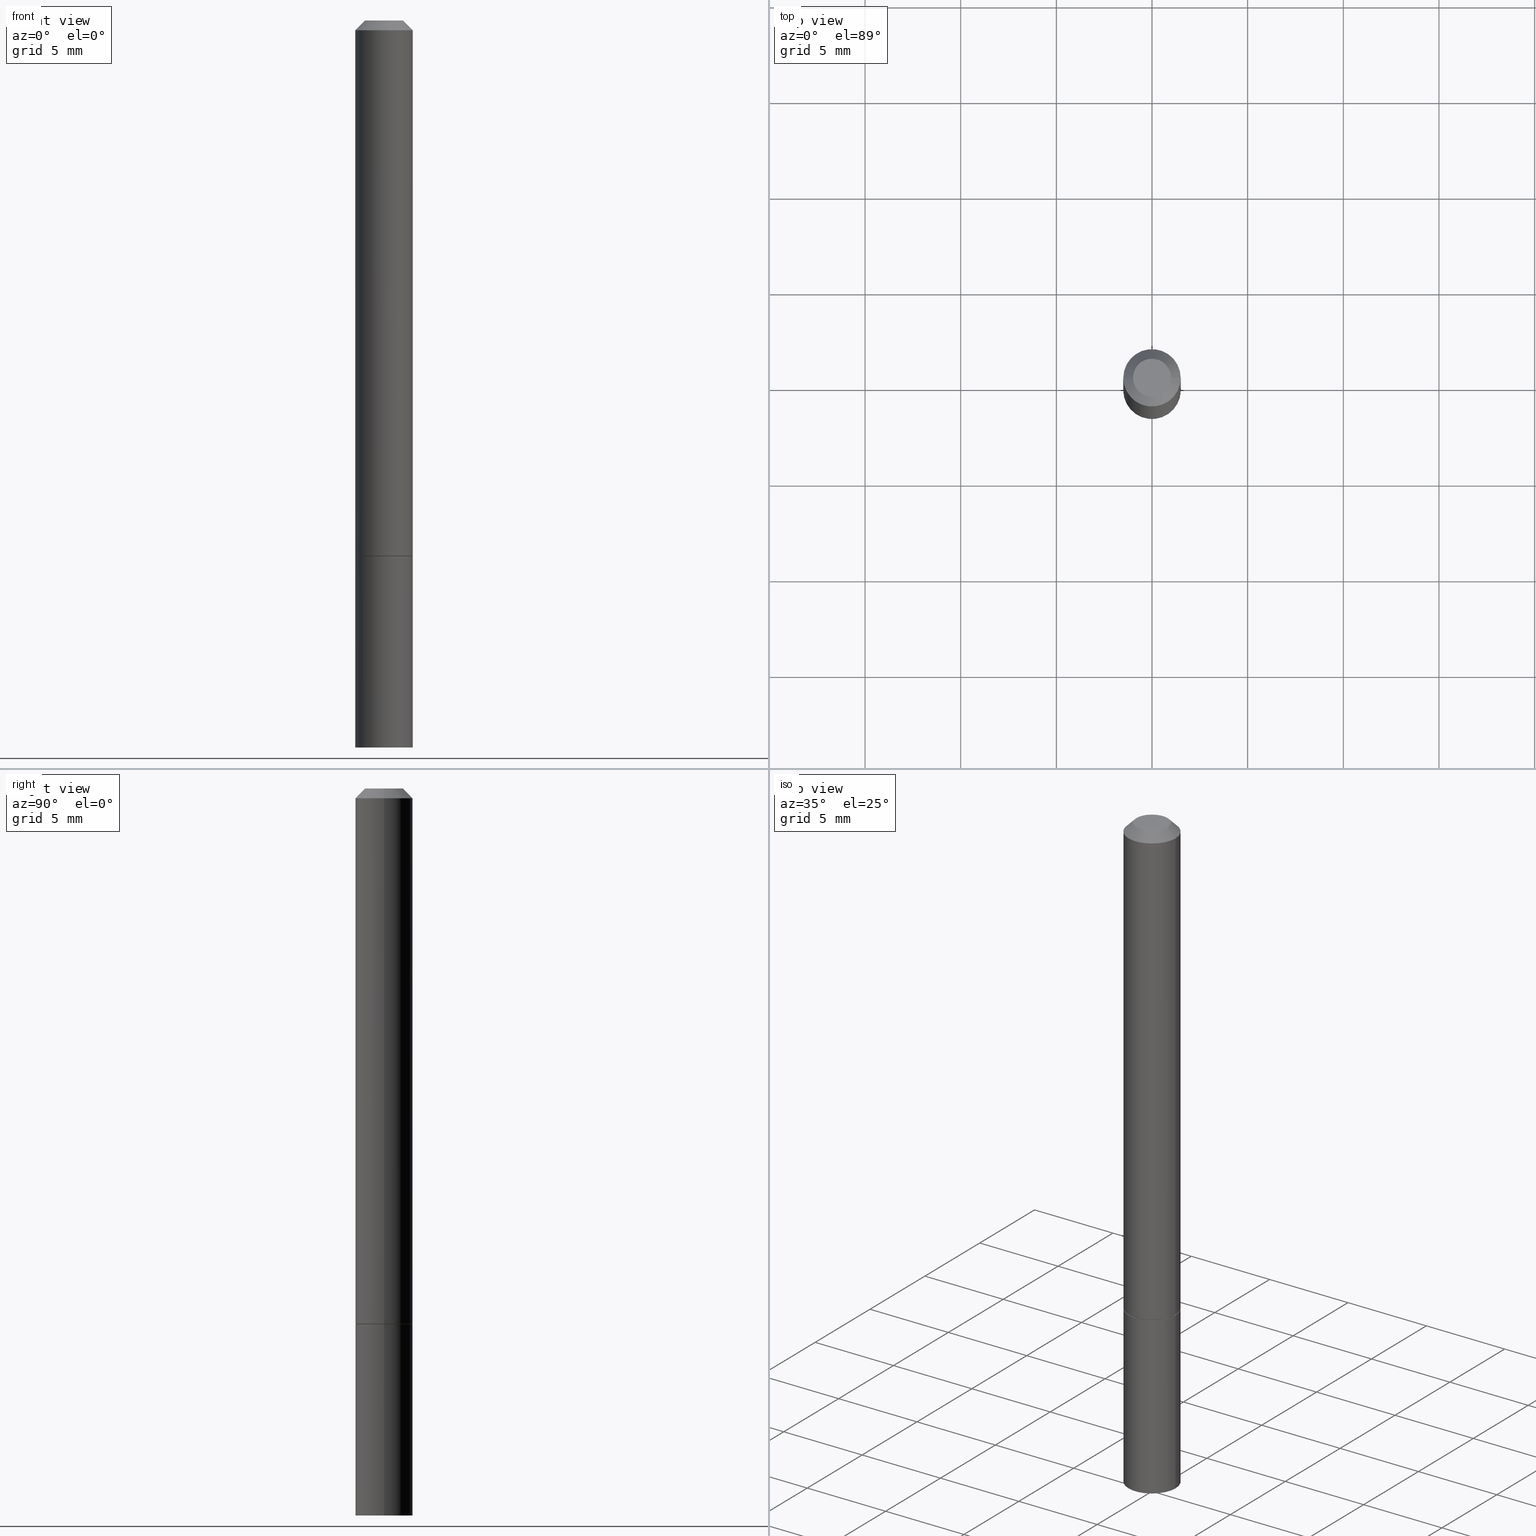
[diagram: canonical four-view strip — front | top / right | iso, engineering-drawing reading convention]
A machine part, canonical four-view strip (front | top / right | iso — engineering-drawing reading convention). The complete STEP part file that produces these views, byte-faithful:
ISO-10303-21;
HEADER;
FILE_DESCRIPTION (( 'STEP AP203' ),
    '1' );
FILE_NAME ('83071.STEP',
    '2024-02-29T23:14:14',
    ( '' ),
    ( '' ),
    'SwSTEP 2.0',
    'SolidWorks 2023',
    '' );
FILE_SCHEMA (( 'CONFIG_CONTROL_DESIGN' ));
ENDSEC;

DATA;
#1 = CC_DESIGN_APPROVAL ( #141, ( #272 ) ) ;
#2 = DATE_AND_TIME ( #310, #342 ) ;
#3 = CLOSED_SHELL ( 'NONE', ( #31, #108, #82, #218 ) ) ;
#4 = DIMENSIONAL_EXPONENTS ( 1.000000000000000000, 0.000000000000000000, 0.000000000000000000, 0.000000000000000000, 0.000000000000000000, 0.000000000000000000, 0.000000000000000000 ) ;
#5 = EDGE_CURVE ( 'NONE', #43, #33, #353, .T. ) ;
#6 = LOCAL_TIME ( 18, 14, 14.00000000000000000, #74 ) ;
#7 = LINE ( 'NONE', #247, #289 ) ;
#8 = ORIENTED_EDGE ( 'NONE', *, *, #203, .T. ) ;
#9 = CARTESIAN_POINT ( 'NONE',  ( 0.05904999999999988036, -4.749420335452712790E-16, -0.02000000000000006287 ) ) ;
#10 = ORIENTED_EDGE ( 'NONE', *, *, #313, .F. ) ;
#11 = PRODUCT_DEFINITION ( 'UNKNOWN', '', #272, #186 ) ;
#12 =( GEOMETRIC_REPRESENTATION_CONTEXT ( 3 ) GLOBAL_UNCERTAINTY_ASSIGNED_CONTEXT ( ( #139 ) ) GLOBAL_UNIT_ASSIGNED_CONTEXT ( ( #140, #206, #76 ) ) REPRESENTATION_CONTEXT ( 'NONE', 'WORKASPACE' ) );
#13 = VERTEX_POINT ( 'NONE', #19 ) ;
#14 = APPROVAL_DATE_TIME ( #29, #360 ) ;
#15 = EDGE_LOOP ( 'NONE', ( #194, #325, #257, #301 ) ) ;
#16 = DIRECTION ( 'NONE',  ( -2.445468806185136597E-29, 3.491481338843145583E-15, 1.000000000000000000 ) ) ;
#17 = ORIENTED_EDGE ( 'NONE', *, *, #111, .F. ) ;
#18 = AXIS2_PLACEMENT_3D ( 'NONE', #59, #211, #121 ) ;
#19 = CARTESIAN_POINT ( 'NONE',  ( 0.05805000000000001131, -4.254370011380371436E-15, -1.102400000000000047 ) ) ;
#20 = ADVANCED_FACE ( 'NONE', ( #284 ), #359, .F. ) ;
#21 = DIRECTION ( 'NONE',  ( 1.000000000000000000, -6.982962677686266711E-15, 4.876176775795935793E-29 ) ) ;
#22 = ORIENTED_EDGE ( 'NONE', *, *, #295, .T. ) ;
#23 = AXIS2_PLACEMENT_3D ( 'NONE', #189, #160, #63 ) ;
#24 = PERSON_AND_ORGANIZATION ( #107, #101 ) ;
#25 = PRODUCT_DEFINITION_SHAPE ( 'NONE', 'NONE',  #11 ) ;
#26 = CARTESIAN_POINT ( 'NONE',  ( -0.05805000000000001131, -3.431240515483723221E-15, -1.102400000000000047 ) ) ;
#27 = CARTESIAN_POINT ( 'NONE',  ( -0.05904999999999988036, 3.425143193405100442E-16, -0.02000000000000006287 ) ) ;
#28 = VECTOR ( 'NONE', #277, 39.37007874015748143 ) ;
#29 = DATE_AND_TIME ( #114, #269 ) ;
#30 = EDGE_CURVE ( 'NONE', #33, #43, #150, .T. ) ;
#31 = ADVANCED_FACE ( 'NONE', ( #336 ), #314, .T. ) ;
#32 = AXIS2_PLACEMENT_3D ( 'NONE', #265, #291, #362 ) ;
#33 = VERTEX_POINT ( 'NONE', #153 ) ;
#34 = PERSON_AND_ORGANIZATION ( #107, #101 ) ;
#35 = CIRCLE ( 'NONE', #126, 0.05905000000000001914 ) ;
#36 = VERTEX_POINT ( 'NONE', #83 ) ;
#37 = DIRECTION ( 'NONE',  ( -1.000000000000000000, 6.982962677686266711E-15, 0.000000000000000000 ) ) ;
#38 = DIRECTION ( 'NONE',  ( -2.445468806185136597E-29, 3.491481338843145583E-15, 1.000000000000000000 ) ) ;
#39 = EDGE_LOOP ( 'NONE', ( #164, #128, #10, #306 ) ) ;
#40 = VECTOR ( 'NONE', #317, 39.37007874015748143 ) ;
#41 = APPROVAL_PERSON_ORGANIZATION ( #279, #141, #122 ) ;
#42 = DIRECTION ( 'NONE',  ( -2.445468806185136597E-29, 3.491481338843145583E-15, 1.000000000000000000 ) ) ;
#43 = VERTEX_POINT ( 'NONE', #53 ) ;
#44 = APPROVAL_ROLE ( '' ) ;
#45 = ORIENTED_EDGE ( 'NONE', *, *, #356, .T. ) ;
#46 = DIRECTION ( 'NONE',  ( 1.000000000000000000, -6.982962677686265922E-15, 4.873707401586872212E-29 ) ) ;
#47 = AXIS2_PLACEMENT_3D ( 'NONE', #49, #285, #286 ) ;
#48 = CARTESIAN_POINT ( 'NONE',  ( 0.000000000000000000, 0.000000000000000000, 0.000000000000000000 ) ) ;
#49 = CARTESIAN_POINT ( 'NONE',  ( 0.000000000000000000, 0.000000000000000000, 0.000000000000000000 ) ) ;
#50 = CARTESIAN_POINT ( 'NONE',  ( 0.000000000000000000, 0.000000000000000000, 0.000000000000000000 ) ) ;
#51 = CC_DESIGN_PERSON_AND_ORGANIZATION_ASSIGNMENT ( #171, #230, ( #272 ) ) ;
#52 = AXIS2_PLACEMENT_3D ( 'NONE', #302, #96, #37 ) ;
#53 = CARTESIAN_POINT ( 'NONE',  ( 0.03904999999999992505, -3.714222401791245450E-16, -3.414809992080104074E-17 ) ) ;
#54 = CIRCLE ( 'NONE', #175, 0.05905000000000001914 ) ;
#55 = ADVANCED_FACE ( 'NONE', ( #91 ), #366, .T. ) ;
#56 = PERSON_AND_ORGANIZATION_ROLE ( 'design_owner' ) ;
#57 = CC_DESIGN_PERSON_AND_ORGANIZATION_ASSIGNMENT ( #65, #216, ( #179 ) ) ;
#58 = CIRCLE ( 'NONE', #134, 0.05904999999999988036 ) ;
#59 = CARTESIAN_POINT ( 'NONE',  ( 2.695884811938494470E-29, -3.849009027940684107E-15, -1.102400000000000047 ) ) ;
#60 = FACE_OUTER_BOUND ( 'NONE', #149, .T. ) ;
#61 = EDGE_CURVE ( 'NONE', #288, #169, #154, .T. ) ;
#62 = PERSON_AND_ORGANIZATION ( #107, #101 ) ;
#63 = DIRECTION ( 'NONE',  ( 1.000000000000000000, -6.982962677686266711E-15, 4.876176775795935232E-29 ) ) ;
#64 = VERTEX_POINT ( 'NONE', #364 ) ;
#65 = PERSON_AND_ORGANIZATION ( #107, #101 ) ;
#66 = CARTESIAN_POINT ( 'NONE',  ( 3.658665880933582389E-29, -5.223605231043229660E-15, -1.496099999999999985 ) ) ;
#67 = ORIENTED_EDGE ( 'NONE', *, *, #348, .F. ) ;
#68 = DIRECTION ( 'NONE',  ( 1.000000000000000000, -6.982962677686270655E-15, 0.000000000000000000 ) ) ;
#69 = CARTESIAN_POINT ( 'NONE',  ( -0.05905000000000001914, -4.116731644025616996E-15, -1.496099999999999985 ) ) ;
#70 = ORIENTED_EDGE ( 'NONE', *, *, #234, .T. ) ;
#71 = DIRECTION ( 'NONE',  ( 1.000000000000000000, -6.982962677686266711E-15, 0.000000000000000000 ) ) ;
#72 = ORIENTED_EDGE ( 'NONE', *, *, #163, .T. ) ;
#73 = COORDINATED_UNIVERSAL_TIME_OFFSET ( 5, 0, .BEHIND. ) ;
#74 = COORDINATED_UNIVERSAL_TIME_OFFSET ( 5, 0, .BEHIND. ) ;
#75 = MANIFOLD_SOLID_BREP ( 'Body-Move/Copy2[2]', #205 ) ;
#76 =( NAMED_UNIT ( * ) SI_UNIT ( $, .STERADIAN. ) SOLID_ANGLE_UNIT ( ) );
#77 = CARTESIAN_POINT ( 'NONE',  ( 2.695884811938494470E-29, -3.849009027940684107E-15, -1.102400000000000047 ) ) ;
#78 = DIRECTION ( 'NONE',  ( -2.445468806185136597E-29, 3.491481338843145583E-15, 1.000000000000000000 ) ) ;
#79 = APPLICATION_CONTEXT ( 'configuration controlled 3d designs of mechanical parts and assemblies' ) ;
#80 = DIRECTION ( 'NONE',  ( 1.000000000000000000, -6.982962677686265922E-15, 4.876176775795935793E-29 ) ) ;
#81 = CC_DESIGN_SECURITY_CLASSIFICATION ( #179, ( #272 ) ) ;
#82 = ADVANCED_FACE ( 'NONE', ( #117 ), #180, .F. ) ;
#83 = CARTESIAN_POINT ( 'NONE',  ( 0.05904999999999988036, -4.749420335452712790E-16, -0.02000000000000006287 ) ) ;
#84 = CIRCLE ( 'NONE', #276, 0.05905000000000001914 ) ;
#85 = DIRECTION ( 'NONE',  ( -2.445468806185136597E-29, 3.491481338843145583E-15, 1.000000000000000000 ) ) ;
#86 = FACE_OUTER_BOUND ( 'NONE', #100, .T. ) ;
#87 = CONICAL_SURFACE ( 'NONE', #192, 0.05904999999999988036, 0.7853981633974465026 ) ;
#88 = EDGE_CURVE ( 'NONE', #64, #112, #119, .T. ) ;
#89 = CARTESIAN_POINT ( 'NONE',  ( -0.05904999999999994975, 4.195754854663388027E-16, -2.904631170795519440E-30 ) ) ;
#90 = APPROVAL_STATUS ( 'not_yet_approved' ) ;
#91 = FACE_OUTER_BOUND ( 'NONE', #275, .T. ) ;
#92 = CONICAL_SURFACE ( 'NONE', #52, 0.05904999999999988036, 0.7853981633974465026 ) ;
#93 = PERSON_AND_ORGANIZATION_ROLE ( 'creator' ) ;
#94 = DATE_AND_TIME ( #127, #176 ) ;
#95 = DIRECTION ( 'NONE',  ( 2.445468806185136597E-29, -3.491481338843145583E-15, -1.000000000000000000 ) ) ;
#96 = DIRECTION ( 'NONE',  ( 2.445468806185136597E-29, -3.491481338843145583E-15, -1.000000000000000000 ) ) ;
#97 = EDGE_LOOP ( 'NONE', ( #178, #70 ) ) ;
#98 = CARTESIAN_POINT ( 'NONE',  ( 4.890937612370288923E-31, -6.982962677686312563E-17, -0.02000000000000006287 ) ) ;
#99 = VECTOR ( 'NONE', #209, 39.37007874015748143 ) ;
#100 = EDGE_LOOP ( 'NONE', ( #200, #135 ) ) ;
#101 = ORGANIZATION ( 'UNSPECIFIED', 'UNSPECIFIED', '' ) ;
#102 = LINE ( 'NONE', #167, #28 ) ;
#103 = EDGE_LOOP ( 'NONE', ( #130, #309, #8, #252 ) ) ;
#104 = CARTESIAN_POINT ( 'NONE',  ( 0.000000000000000000, 0.000000000000000000, 0.000000000000000000 ) ) ;
#105 = CARTESIAN_POINT ( 'NONE',  ( 2.726846925636481266E-16, 0.03904999999999992505, -1.534163962422261891E-16 ) ) ;
#106 = ORIENTED_EDGE ( 'NONE', *, *, #88, .F. ) ;
#107 = PERSON ( 'UNSPECIFIED', 'UNSPECIFIED', 'UNSPECIFIED', ('UNSPECIFIED'), ('UNSPECIFIED'), ('UNSPECIFIED') ) ;
#108 = ADVANCED_FACE ( 'NONE', ( #245 ), #182, .T. ) ;
#109 = CYLINDRICAL_SURFACE ( 'NONE', #263, 0.05905000000000001914 ) ;
#110 = AXIS2_PLACEMENT_3D ( 'NONE', #256, #38, #354 ) ;
#111 = EDGE_CURVE ( 'NONE', #112, #36, #322, .T. ) ;
#112 = VERTEX_POINT ( 'NONE', #27 ) ;
#113 = ORIENTED_EDGE ( 'NONE', *, *, #338, .T. ) ;
#114 = CALENDAR_DATE ( 2024, 29, 2 ) ;
#115 = ADVANCED_FACE ( 'NONE', ( #86 ), #214, .F. ) ;
#116 = CARTESIAN_POINT ( 'NONE',  ( 2.695884811938494470E-29, -3.849009027940684107E-15, -1.102400000000000047 ) ) ;
#117 = FACE_OUTER_BOUND ( 'NONE', #97, .T. ) ;
#118 = VECTOR ( 'NONE', #271, 39.37007874015748143 ) ;
#119 = LINE ( 'NONE', #89, #40 ) ;
#120 = CC_DESIGN_PERSON_AND_ORGANIZATION_ASSIGNMENT ( #340, #56, ( #345 ) ) ;
#121 = DIRECTION ( 'NONE',  ( 1.000000000000000000, -6.982962677686270655E-15, 0.000000000000000000 ) ) ;
#122 = APPROVAL_ROLE ( '' ) ;
#123 = DIRECTION ( 'NONE',  ( -2.445468806185136597E-29, 3.491481338843145583E-15, 1.000000000000000000 ) ) ;
#124 = VECTOR ( 'NONE', #133, 39.37007874015748143 ) ;
#125 = DIRECTION ( 'NONE',  ( 0.7071067811865232589, -2.468850131082003836E-15, 0.7071067811865715536 ) ) ;
#126 = AXIS2_PLACEMENT_3D ( 'NONE', #66, #166, #250 ) ;
#127 = CALENDAR_DATE ( 2024, 29, 2 ) ;
#128 = ORIENTED_EDGE ( 'NONE', *, *, #348, .T. ) ;
#129 = DIRECTION ( 'NONE',  ( -2.445468806185136877E-29, 3.491481338843145188E-15, 1.000000000000000000 ) ) ;
#130 = ORIENTED_EDGE ( 'NONE', *, *, #165, .F. ) ;
#131 = CC_DESIGN_PERSON_AND_ORGANIZATION_ASSIGNMENT ( #158, #260, ( #272 ) ) ;
#132 = DIRECTION ( 'NONE',  ( -0.7071067811865232589, 7.493145998870265808E-15, 0.7071067811865715536 ) ) ;
#133 = DIRECTION ( 'NONE',  ( 0.7071067811865462405, -7.319954787623251312E-15, -0.7071067811865487940 ) ) ;
#134 = AXIS2_PLACEMENT_3D ( 'NONE', #355, #327, #71 ) ;
#135 = ORIENTED_EDGE ( 'NONE', *, *, #5, .T. ) ;
#136 = DIRECTION ( 'NONE',  ( -2.445468806185136597E-29, 3.491481338843145583E-15, 1.000000000000000000 ) ) ;
#137 = ORIENTED_EDGE ( 'NONE', *, *, #190, .F. ) ;
#138 = APPROVAL_STATUS ( 'not_yet_approved' ) ;
#139 = UNCERTAINTY_MEASURE_WITH_UNIT (LENGTH_MEASURE( 1.000000000000000082E-05 ), #140, 'distance_accuracy_value', 'NONE');
#140 =( CONVERSION_BASED_UNIT ( 'INCH', #236 ) LENGTH_UNIT ( ) NAMED_UNIT ( #4 ) );
#141 = APPROVAL ( #138, 'UNSPECIFIED' ) ;
#142 = ORIENTED_EDGE ( 'NONE', *, *, #217, .F. ) ;
#143 = AXIS2_PLACEMENT_3D ( 'NONE', #173, #78, #46 ) ;
#144 = CYLINDRICAL_SURFACE ( 'NONE', #47, 0.05904999999999994975 ) ;
#145 = CC_DESIGN_DATE_AND_TIME_ASSIGNMENT ( #202, #170, ( #11 ) ) ;
#146 =( LENGTH_UNIT ( ) NAMED_UNIT ( * ) SI_UNIT ( $, .METRE. ) );
#147 = CARTESIAN_POINT ( 'NONE',  ( 8.350811314681758556E-46, -1.192274536304357760E-31, -3.414809992080329023E-17 ) ) ;
#148 = CARTESIAN_POINT ( 'NONE',  ( 0.05905000000000001914, -4.261352974058058239E-15, -1.102400000000000047 ) ) ;
#149 = EDGE_LOOP ( 'NONE', ( #106, #22, #326, #17 ) ) ;
#150 = CIRCLE ( 'NONE', #246, 0.03904999999999992505 ) ;
#151 = ADVANCED_FACE ( 'NONE', ( #161 ), #92, .T. ) ;
#152 = CARTESIAN_POINT ( 'NONE',  ( 2.695884811938494470E-29, -3.849009027940684107E-15, -1.102400000000000047 ) ) ;
#153 = CARTESIAN_POINT ( 'NONE',  ( -0.03904999999999992505, 3.075995059520790361E-16, -3.414809992080532401E-17 ) ) ;
#154 = CIRCLE ( 'NONE', #32, 0.05905000000000001914 ) ;
#155 = CARTESIAN_POINT ( 'NONE',  ( 0.05904999999999994975, -4.123439461173736876E-16, 2.879382386107497418E-30 ) ) ;
#156 = APPROVAL_PERSON_ORGANIZATION ( #62, #283, #44 ) ;
#157 = EDGE_CURVE ( 'NONE', #13, #280, #305, .T. ) ;
#158 = PERSON_AND_ORGANIZATION ( #107, #101 ) ;
#159 = AXIS2_PLACEMENT_3D ( 'NONE', #346, #210, #341 ) ;
#160 = DIRECTION ( 'NONE',  ( -2.445468806185136597E-29, 3.491481338843145583E-15, 1.000000000000000000 ) ) ;
#161 = FACE_OUTER_BOUND ( 'NONE', #103, .T. ) ;
#162 = ORIENTED_EDGE ( 'NONE', *, *, #234, .F. ) ;
#163 = EDGE_CURVE ( 'NONE', #311, #13, #238, .T. ) ;
#164 = ORIENTED_EDGE ( 'NONE', *, *, #61, .T. ) ;
#165 = EDGE_CURVE ( 'NONE', #43, #36, #223, .T. ) ;
#166 = DIRECTION ( 'NONE',  ( -2.445468806185136597E-29, 3.491481338843145583E-15, 1.000000000000000000 ) ) ;
#167 = CARTESIAN_POINT ( 'NONE',  ( -0.05904999999999988036, 3.425143193405100442E-16, -0.02000000000000006287 ) ) ;
#168 = AXIS2_PLACEMENT_3D ( 'NONE', #208, #42, #315 ) ;
#169 = VERTEX_POINT ( 'NONE', #69 ) ;
#170 = DATE_TIME_ROLE ( 'creation_date' ) ;
#171 = PERSON_AND_ORGANIZATION ( #107, #101 ) ;
#172 = APPLICATION_PROTOCOL_DEFINITION ( 'international standard', 'config_control_design', 1994, #197 ) ;
#173 = CARTESIAN_POINT ( 'NONE',  ( 8.350811314681758556E-46, -1.192274536304357760E-31, -3.414809992080329023E-17 ) ) ;
#174 = AXIS2_PLACEMENT_3D ( 'NONE', #251, #229, #351 ) ;
#175 = AXIS2_PLACEMENT_3D ( 'NONE', #116, #136, #213 ) ;
#176 = LOCAL_TIME ( 18, 14, 14.00000000000000000, #184 ) ;
#177 = DIRECTION ( 'NONE',  ( 1.000000000000000000, -6.982962677686265922E-15, 4.873707401586872212E-29 ) ) ;
#178 = ORIENTED_EDGE ( 'NONE', *, *, #313, .T. ) ;
#179 = SECURITY_CLASSIFICATION ( '', '', #262 ) ;
#180 = PLANE ( 'NONE',  #307 ) ;
#181 = DIRECTION ( 'NONE',  ( -1.000000000000000000, 6.982962677686265922E-15, -4.876176775795935793E-29 ) ) ;
#182 = PLANE ( 'NONE',  #231 ) ;
#183 = CC_DESIGN_PERSON_AND_ORGANIZATION_ASSIGNMENT ( #34, #93, ( #11 ) ) ;
#184 = COORDINATED_UNIVERSAL_TIME_OFFSET ( 5, 0, .BEHIND. ) ;
#185 = APPROVAL_STATUS ( 'not_yet_approved' ) ;
#186 = DESIGN_CONTEXT ( 'detailed design', #79, 'design' ) ;
#187 = EDGE_LOOP ( 'NONE', ( #67, #45, #113, #162 ) ) ;
#188 = AXIS2_PLACEMENT_3D ( 'NONE', #50, #287, #21 ) ;
#189 = CARTESIAN_POINT ( 'NONE',  ( 0.000000000000000000, 0.000000000000000000, 0.000000000000000000 ) ) ;
#190 = EDGE_CURVE ( 'NONE', #280, #64, #347, .T. ) ;
#191 = ORIENTED_EDGE ( 'NONE', *, *, #295, .F. ) ;
#192 = AXIS2_PLACEMENT_3D ( 'NONE', #98, #95, #220 ) ;
#193 = CARTESIAN_POINT ( 'NONE',  ( -0.05805000000000001131, -3.436538969831945623E-15, -1.102400000000000047 ) ) ;
#194 = ORIENTED_EDGE ( 'NONE', *, *, #5, .F. ) ;
#195 = FACE_OUTER_BOUND ( 'NONE', #15, .T. ) ;
#196 = ORIENTED_EDGE ( 'NONE', *, *, #163, .F. ) ;
#197 = APPLICATION_CONTEXT ( 'configuration controlled 3d designs of mechanical parts and assemblies' ) ;
#198 = FACE_OUTER_BOUND ( 'NONE', #187, .T. ) ;
#199 = AXIS2_PLACEMENT_3D ( 'NONE', #105, #249, #321 ) ;
#200 = ORIENTED_EDGE ( 'NONE', *, *, #30, .T. ) ;
#201 = VERTEX_POINT ( 'NONE', #258 ) ;
#202 = DATE_AND_TIME ( #296, #330 ) ;
#203 = EDGE_CURVE ( 'NONE', #33, #112, #102, .T. ) ;
#204 = DIRECTION ( 'NONE',  ( -2.445468806185136597E-29, 3.491481338843145583E-15, 1.000000000000000000 ) ) ;
#205 = CLOSED_SHELL ( 'NONE', ( #55, #268, #350, #151, #339, #304, #20, #115 ) ) ;
#206 =( NAMED_UNIT ( * ) PLANE_ANGLE_UNIT ( ) SI_UNIT ( $, .RADIAN. ) );
#207 = DIRECTION ( 'NONE',  ( -2.438088387897960049E-29, 3.491481338843145188E-15, 1.000000000000000000 ) ) ;
#208 = CARTESIAN_POINT ( 'NONE',  ( 2.693439343132309428E-29, -3.845517546601840311E-15, -1.101399999999999935 ) ) ;
#209 = DIRECTION ( 'NONE',  ( -2.445468806185136877E-29, 3.491481338843145188E-15, 1.000000000000000000 ) ) ;
#210 = DIRECTION ( 'NONE',  ( -2.445468806185136597E-29, 3.491481338843145583E-15, 1.000000000000000000 ) ) ;
#211 = DIRECTION ( 'NONE',  ( -2.445468806185136597E-29, 3.491481338843145583E-15, 1.000000000000000000 ) ) ;
#212 = ADVANCED_BREP_SHAPE_REPRESENTATION ( '83071', ( #293, #75, #300 ), #12 ) ;
#213 = DIRECTION ( 'NONE',  ( 1.000000000000000000, -6.982962677686270655E-15, 0.000000000000000000 ) ) ;
#214 = PLANE ( 'NONE',  #199 ) ;
#215 = CC_DESIGN_APPROVAL ( #360, ( #11 ) ) ;
#216 = PERSON_AND_ORGANIZATION_ROLE ( 'classification_officer' ) ;
#217 = EDGE_CURVE ( 'NONE', #36, #112, #58, .T. ) ;
#218 = ADVANCED_FACE ( 'NONE', ( #198 ), #109, .T. ) ;
#219 = APPROVAL_DATE_TIME ( #94, #141 ) ;
#220 = DIRECTION ( 'NONE',  ( -1.000000000000000000, 6.982962677686266711E-15, 0.000000000000000000 ) ) ;
#221 = EDGE_LOOP ( 'NONE', ( #303, #196 ) ) ;
#222 = CIRCLE ( 'NONE', #168, 0.05905000000000001914 ) ;
#223 = LINE ( 'NONE', #9, #124 ) ;
#224 = VECTOR ( 'NONE', #132, 39.37007874015748854 ) ;
#225 = EDGE_LOOP ( 'NONE', ( #261, #352 ) ) ;
#226 = CARTESIAN_POINT ( 'NONE',  ( 0.05805000000000001131, -4.254370011380371436E-15, -1.102400000000000047 ) ) ;
#227 = EDGE_LOOP ( 'NONE', ( #333, #72, #273, #191 ) ) ;
#228 = DIRECTION ( 'NONE',  ( 0.000000000000000000, 0.000000000000000000, 1.000000000000000000 ) ) ;
#229 = DIRECTION ( 'NONE',  ( -2.445468806185136597E-29, 3.491481338843145583E-15, 1.000000000000000000 ) ) ;
#230 = PERSON_AND_ORGANIZATION_ROLE ( 'design_supplier' ) ;
#231 = AXIS2_PLACEMENT_3D ( 'NONE', #316, #292, #241 ) ;
#232 = APPROVAL_DATE_TIME ( #358, #283 ) ;
#233 = ORIENTED_EDGE ( 'NONE', *, *, #363, .T. ) ;
#234 = EDGE_CURVE ( 'NONE', #201, #274, #84, .T. ) ;
#235 = CARTESIAN_POINT ( 'NONE',  ( 2.695884811938494470E-29, -3.849009027940684107E-15, -1.102400000000000047 ) ) ;
#236 = LENGTH_MEASURE_WITH_UNIT ( LENGTH_MEASURE( 0.02539999999999999897 ), #146 );
#237 = DIRECTION ( 'NONE',  ( -2.445468806185136597E-29, 3.491481338843145583E-15, 1.000000000000000000 ) ) ;
#238 = CIRCLE ( 'NONE', #174, 0.05805000000000001131 ) ;
#239 = APPROVAL_PERSON_ORGANIZATION ( #24, #360, #318 ) ;
#240 = CARTESIAN_POINT ( 'NONE',  ( 0.05905000000000001914, -4.257861492719214443E-15, -1.101399999999999935 ) ) ;
#241 = DIRECTION ( 'NONE',  ( -1.000000000000000000, 6.982962677686265922E-15, -4.876176775795935793E-29 ) ) ;
#242 = DIRECTION ( 'NONE',  ( 1.000000000000000000, -6.982962677686270655E-15, 0.000000000000000000 ) ) ;
#243 = APPLICATION_PROTOCOL_DEFINITION ( 'international standard', 'config_control_design', 1994, #79 ) ;
#244 = CC_DESIGN_DATE_AND_TIME_ASSIGNMENT ( #2, #319, ( #179 ) ) ;
#245 = FACE_OUTER_BOUND ( 'NONE', #225, .T. ) ;
#246 = AXIS2_PLACEMENT_3D ( 'NONE', #147, #204, #177 ) ;
#247 = CARTESIAN_POINT ( 'NONE',  ( 0.05905000000000001914, -4.123439461173741806E-16, 2.879382386107500921E-30 ) ) ;
#248 = CIRCLE ( 'NONE', #264, 0.05805000000000001131 ) ;
#249 = DIRECTION ( 'NONE',  ( 2.438088387897960049E-29, -3.491481338843145188E-15, -1.000000000000000000 ) ) ;
#250 = DIRECTION ( 'NONE',  ( 1.000000000000000000, -6.982962677686270655E-15, 0.000000000000000000 ) ) ;
#251 = CARTESIAN_POINT ( 'NONE',  ( 2.695884811938494470E-29, -3.849009027940684107E-15, -1.102400000000000047 ) ) ;
#252 = ORIENTED_EDGE ( 'NONE', *, *, #111, .T. ) ;
#253 = CONICAL_SURFACE ( 'NONE', #334, 0.05805000000000001131, 0.7853981633974141952 ) ;
#254 = CARTESIAN_POINT ( 'NONE',  ( 2.695884811938494470E-29, -3.849009027940684107E-15, -1.102400000000000047 ) ) ;
#255 = PRODUCT_RELATED_PRODUCT_CATEGORY ( 'detail', '', ( #345 ) ) ;
#256 = CARTESIAN_POINT ( 'NONE',  ( 2.693439343132309428E-29, -3.845517546601840311E-15, -1.101399999999999935 ) ) ;
#257 = ORIENTED_EDGE ( 'NONE', *, *, #217, .T. ) ;
#258 = CARTESIAN_POINT ( 'NONE',  ( -0.05905000000000001914, -4.116731644025616996E-15, -1.102400000000000047 ) ) ;
#259 = EDGE_LOOP ( 'NONE', ( #297, #278, #142, #312 ) ) ;
#260 = PERSON_AND_ORGANIZATION_ROLE ( 'creator' ) ;
#261 = ORIENTED_EDGE ( 'NONE', *, *, #61, .F. ) ;
#262 = SECURITY_CLASSIFICATION_LEVEL ( 'unclassified' ) ;
#263 = AXIS2_PLACEMENT_3D ( 'NONE', #48, #237, #282 ) ;
#264 = AXIS2_PLACEMENT_3D ( 'NONE', #254, #123, #68 ) ;
#265 = CARTESIAN_POINT ( 'NONE',  ( 3.658665880933582389E-29, -5.223605231043229660E-15, -1.496099999999999985 ) ) ;
#266 = COORDINATED_UNIVERSAL_TIME_OFFSET ( 5, 0, .BEHIND. ) ;
#267 = LINE ( 'NONE', #155, #99 ) ;
#268 = ADVANCED_FACE ( 'NONE', ( #332 ), #144, .T. ) ;
#269 = LOCAL_TIME ( 18, 14, 14.00000000000000000, #266 ) ;
#270 = VECTOR ( 'NONE', #125, 39.37007874015748854 ) ;
#271 = DIRECTION ( 'NONE',  ( -2.445468806185136877E-29, 3.491481338843145188E-15, 1.000000000000000000 ) ) ;
#272 = PRODUCT_DEFINITION_FORMATION_WITH_SPECIFIED_SOURCE ( 'ANY', '', #345, .NOT_KNOWN. ) ;
#273 = ORIENTED_EDGE ( 'NONE', *, *, #157, .T. ) ;
#274 = VERTEX_POINT ( 'NONE', #148 ) ;
#275 = EDGE_LOOP ( 'NONE', ( #357, #233, #137, #328 ) ) ;
#276 = AXIS2_PLACEMENT_3D ( 'NONE', #77, #16, #335 ) ;
#277 = DIRECTION ( 'NONE',  ( -0.7071067811865462405, 2.468850131082243256E-15, -0.7071067811865487940 ) ) ;
#278 = ORIENTED_EDGE ( 'NONE', *, *, #88, .T. ) ;
#279 = PERSON_AND_ORGANIZATION ( #107, #101 ) ;
#280 = VERTEX_POINT ( 'NONE', #240 ) ;
#281 = CALENDAR_DATE ( 2024, 29, 2 ) ;
#282 = DIRECTION ( 'NONE',  ( 1.000000000000000000, -6.982962677686266711E-15, 4.876176775795935793E-29 ) ) ;
#283 = APPROVAL ( #185, 'UNSPECIFIED' ) ;
#284 = FACE_OUTER_BOUND ( 'NONE', #221, .T. ) ;
#285 = DIRECTION ( 'NONE',  ( -2.445468806185136597E-29, 3.491481338843145583E-15, 1.000000000000000000 ) ) ;
#286 = DIRECTION ( 'NONE',  ( 1.000000000000000000, -6.982962677686266711E-15, 4.876176775795935232E-29 ) ) ;
#287 = DIRECTION ( 'NONE',  ( -2.445468806185136597E-29, 3.491481338843145583E-15, 1.000000000000000000 ) ) ;
#288 = VERTEX_POINT ( 'NONE', #337 ) ;
#289 = VECTOR ( 'NONE', #129, 39.37007874015748143 ) ;
#290 = CARTESIAN_POINT ( 'NONE',  ( 4.123439461174010512E-16, 0.05904999999999616805, -1.102400000000000269 ) ) ;
#291 = DIRECTION ( 'NONE',  ( -2.445468806185136597E-29, 3.491481338843145583E-15, 1.000000000000000000 ) ) ;
#292 = DIRECTION ( 'NONE',  ( 2.438088387897960049E-29, -3.491481338843145188E-15, -1.000000000000000000 ) ) ;
#293 = MANIFOLD_SOLID_BREP ( 'Body-Move/Copy2[1]', #3 ) ;
#294 = CC_DESIGN_APPROVAL ( #283, ( #179 ) ) ;
#295 = EDGE_CURVE ( 'NONE', #64, #280, #222, .T. ) ;
#296 = CALENDAR_DATE ( 2024, 29, 2 ) ;
#297 = ORIENTED_EDGE ( 'NONE', *, *, #190, .T. ) ;
#298 = AXIS2_PLACEMENT_3D ( 'NONE', #235, #207, #80 ) ;
#299 = LINE ( 'NONE', #349, #118 ) ;
#300 = AXIS2_PLACEMENT_3D ( 'NONE', #104, #228, #361 ) ;
#301 = ORIENTED_EDGE ( 'NONE', *, *, #203, .F. ) ;
#302 = CARTESIAN_POINT ( 'NONE',  ( 4.890937612370288923E-31, -6.982962677686312563E-17, -0.02000000000000006287 ) ) ;
#303 = ORIENTED_EDGE ( 'NONE', *, *, #324, .F. ) ;
#304 = ADVANCED_FACE ( 'NONE', ( #365 ), #253, .T. ) ;
#305 = LINE ( 'NONE', #226, #270 ) ;
#306 = ORIENTED_EDGE ( 'NONE', *, *, #338, .F. ) ;
#307 = AXIS2_PLACEMENT_3D ( 'NONE', #290, #344, #181 ) ;
#308 = EDGE_CURVE ( 'NONE', #280, #36, #267, .T. ) ;
#309 = ORIENTED_EDGE ( 'NONE', *, *, #30, .F. ) ;
#310 = CALENDAR_DATE ( 2024, 29, 2 ) ;
#311 = VERTEX_POINT ( 'NONE', #26 ) ;
#312 = ORIENTED_EDGE ( 'NONE', *, *, #308, .F. ) ;
#313 = EDGE_CURVE ( 'NONE', #274, #201, #54, .T. ) ;
#314 = CYLINDRICAL_SURFACE ( 'NONE', #188, 0.05905000000000001914 ) ;
#315 = DIRECTION ( 'NONE',  ( 1.000000000000000000, -6.982962677686270655E-15, 0.000000000000000000 ) ) ;
#316 = CARTESIAN_POINT ( 'NONE',  ( 4.123439461174106654E-16, 0.05904999999999479415, -1.496100000000000207 ) ) ;
#317 = DIRECTION ( 'NONE',  ( -2.445468806185136877E-29, 3.491481338843145188E-15, 1.000000000000000000 ) ) ;
#318 = APPROVAL_ROLE ( '' ) ;
#319 = DATE_TIME_ROLE ( 'classification_date' ) ;
#320 = CYLINDRICAL_SURFACE ( 'NONE', #23, 0.05904999999999994975 ) ;
#321 = DIRECTION ( 'NONE',  ( -1.000000000000000000, 6.982962677686265922E-15, -4.876176775795935793E-29 ) ) ;
#322 = CIRCLE ( 'NONE', #159, 0.05904999999999988036 ) ;
#323 = LINE ( 'NONE', #193, #224 ) ;
#324 = EDGE_CURVE ( 'NONE', #13, #311, #248, .T. ) ;
#325 = ORIENTED_EDGE ( 'NONE', *, *, #165, .T. ) ;
#326 = ORIENTED_EDGE ( 'NONE', *, *, #308, .T. ) ;
#327 = DIRECTION ( 'NONE',  ( -2.445468806185136597E-29, 3.491481338843145583E-15, 1.000000000000000000 ) ) ;
#328 = ORIENTED_EDGE ( 'NONE', *, *, #157, .F. ) ;
#329 = COORDINATED_UNIVERSAL_TIME_OFFSET ( 5, 0, .BEHIND. ) ;
#330 = LOCAL_TIME ( 18, 14, 14.00000000000000000, #329 ) ;
#331 = SHAPE_DEFINITION_REPRESENTATION ( #25, #212 ) ;
#332 = FACE_OUTER_BOUND ( 'NONE', #259, .T. ) ;
#333 = ORIENTED_EDGE ( 'NONE', *, *, #363, .F. ) ;
#334 = AXIS2_PLACEMENT_3D ( 'NONE', #152, #85, #242 ) ;
#335 = DIRECTION ( 'NONE',  ( 1.000000000000000000, -6.982962677686270655E-15, 0.000000000000000000 ) ) ;
#336 = FACE_OUTER_BOUND ( 'NONE', #39, .T. ) ;
#337 = CARTESIAN_POINT ( 'NONE',  ( 0.05905000000000001914, -5.635949177160603791E-15, -1.496099999999999985 ) ) ;
#338 = EDGE_CURVE ( 'NONE', #288, #274, #7, .T. ) ;
#339 = ADVANCED_FACE ( 'NONE', ( #60 ), #320, .T. ) ;
#340 = PERSON_AND_ORGANIZATION ( #107, #101 ) ;
#341 = DIRECTION ( 'NONE',  ( 1.000000000000000000, -6.982962677686266711E-15, 0.000000000000000000 ) ) ;
#342 = LOCAL_TIME ( 18, 14, 14.00000000000000000, #73 ) ;
#343 = MECHANICAL_CONTEXT ( 'NONE', #197, 'mechanical' ) ;
#344 = DIRECTION ( 'NONE',  ( 2.438088387897960049E-29, -3.491481338843145188E-15, -1.000000000000000000 ) ) ;
#345 = PRODUCT ( '83071', '83071', '', ( #343 ) ) ;
#346 = CARTESIAN_POINT ( 'NONE',  ( 4.890937612370288923E-31, -6.982962677686312563E-17, -0.02000000000000006287 ) ) ;
#347 = CIRCLE ( 'NONE', #110, 0.05905000000000001914 ) ;
#348 = EDGE_CURVE ( 'NONE', #169, #201, #299, .T. ) ;
#349 = CARTESIAN_POINT ( 'NONE',  ( -0.05905000000000001914, 4.195754854663392958E-16, -2.904631170795522943E-30 ) ) ;
#350 = ADVANCED_FACE ( 'NONE', ( #195 ), #87, .T. ) ;
#351 = DIRECTION ( 'NONE',  ( 1.000000000000000000, -6.982962677686270655E-15, 0.000000000000000000 ) ) ;
#352 = ORIENTED_EDGE ( 'NONE', *, *, #356, .F. ) ;
#353 = CIRCLE ( 'NONE', #143, 0.03904999999999992505 ) ;
#354 = DIRECTION ( 'NONE',  ( 1.000000000000000000, -6.982962677686270655E-15, 0.000000000000000000 ) ) ;
#355 = CARTESIAN_POINT ( 'NONE',  ( 4.890937612370288923E-31, -6.982962677686312563E-17, -0.02000000000000006287 ) ) ;
#356 = EDGE_CURVE ( 'NONE', #169, #288, #35, .T. ) ;
#357 = ORIENTED_EDGE ( 'NONE', *, *, #324, .T. ) ;
#358 = DATE_AND_TIME ( #281, #6 ) ;
#359 = PLANE ( 'NONE',  #298 ) ;
#360 = APPROVAL ( #90, 'UNSPECIFIED' ) ;
#361 = DIRECTION ( 'NONE',  ( 1.000000000000000000, 0.000000000000000000, 0.000000000000000000 ) ) ;
#362 = DIRECTION ( 'NONE',  ( 1.000000000000000000, -6.982962677686270655E-15, 0.000000000000000000 ) ) ;
#363 = EDGE_CURVE ( 'NONE', #311, #64, #323, .T. ) ;
#364 = CARTESIAN_POINT ( 'NONE',  ( -0.05905000000000001914, -1.538098101223010537E-15, -1.101399999999999935 ) ) ;
#365 = FACE_OUTER_BOUND ( 'NONE', #227, .T. ) ;
#366 = CONICAL_SURFACE ( 'NONE', #18, 0.05805000000000001131, 0.7853981633974141952 ) ;
ENDSEC;
END-ISO-10303-21;
